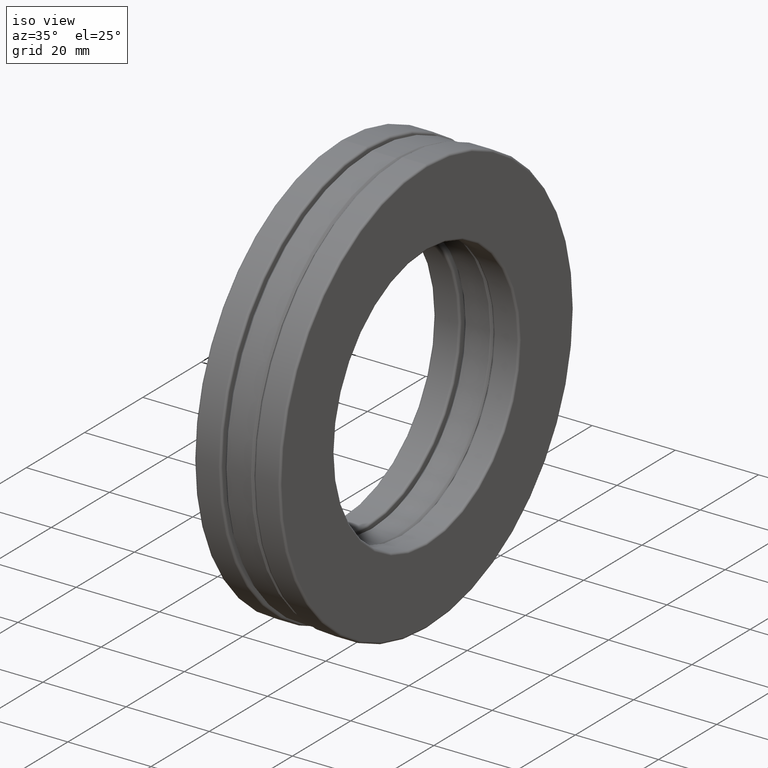
[diagram: clean part render]
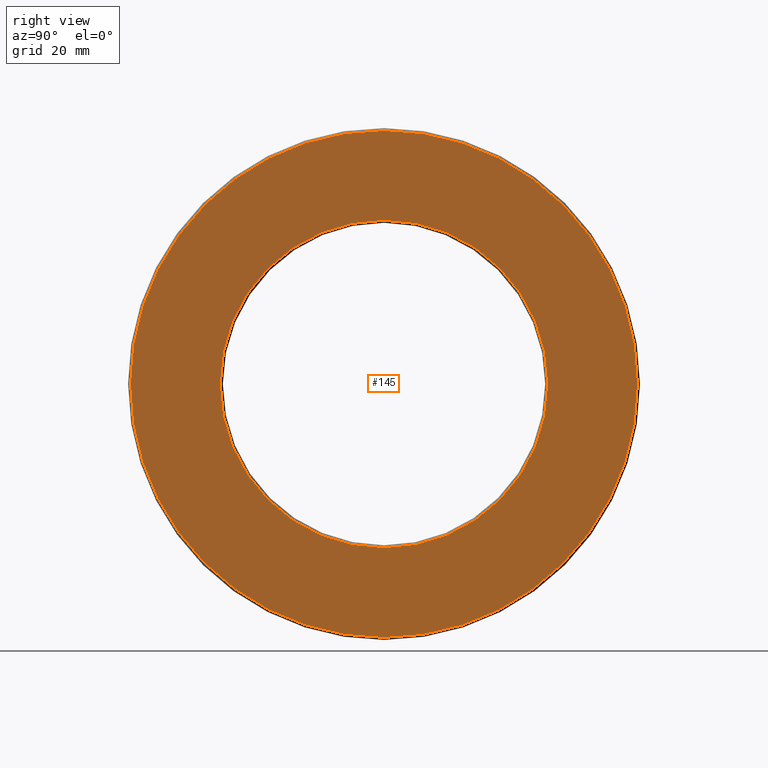
[diagram: tour spotlight — one face highlighted and labeled with its STEP entity id]
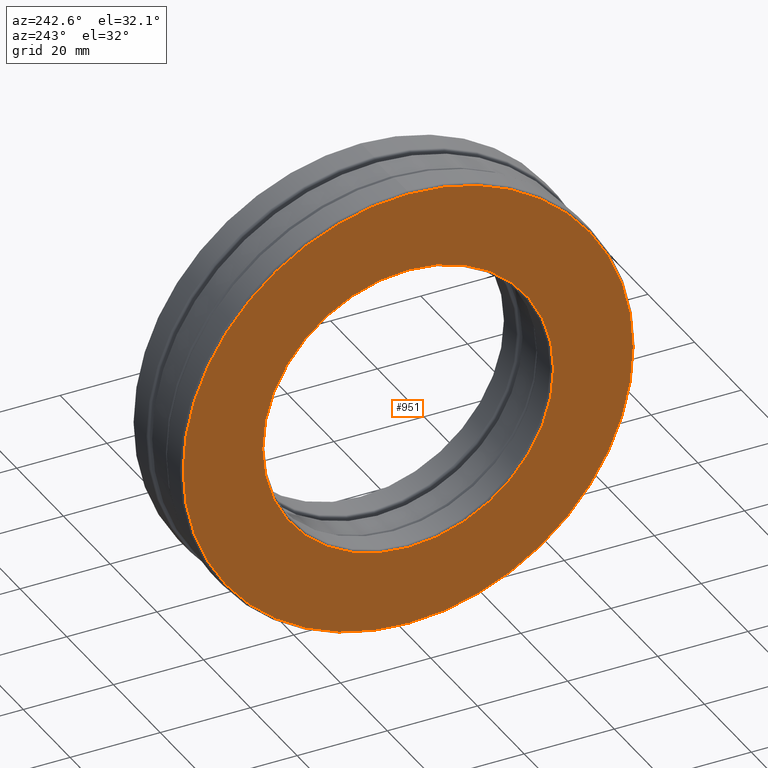
[diagram: tour spotlight — one face highlighted and labeled with its STEP entity id]
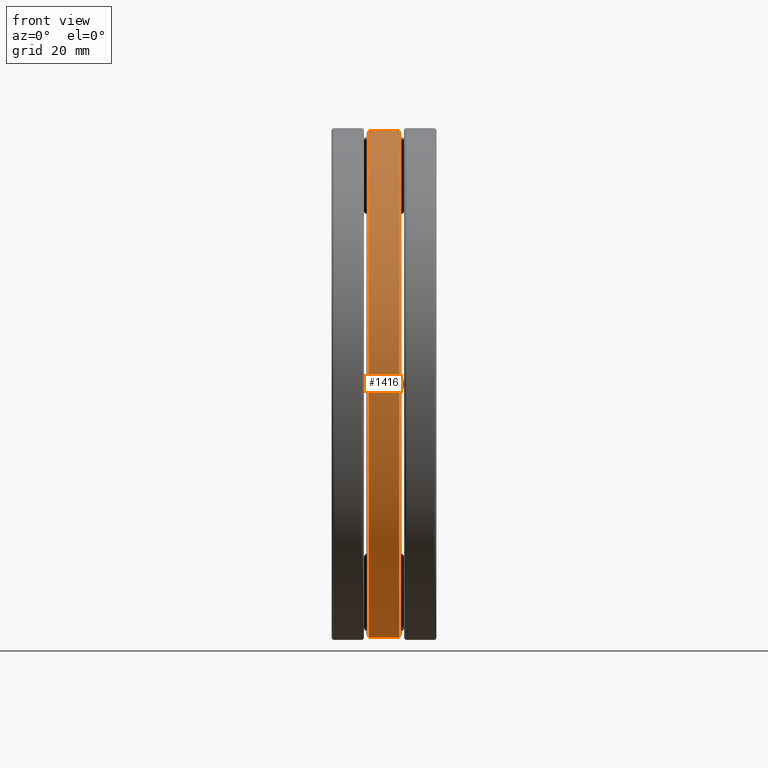
[diagram: tour spotlight — one face highlighted and labeled with its STEP entity id]
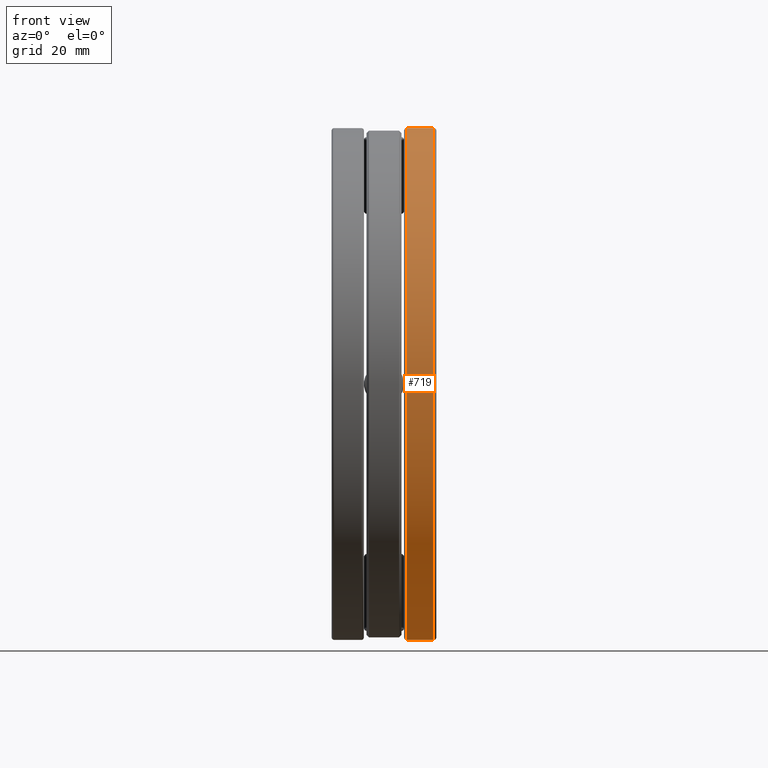
[diagram: tour spotlight — one face highlighted and labeled with its STEP entity id]
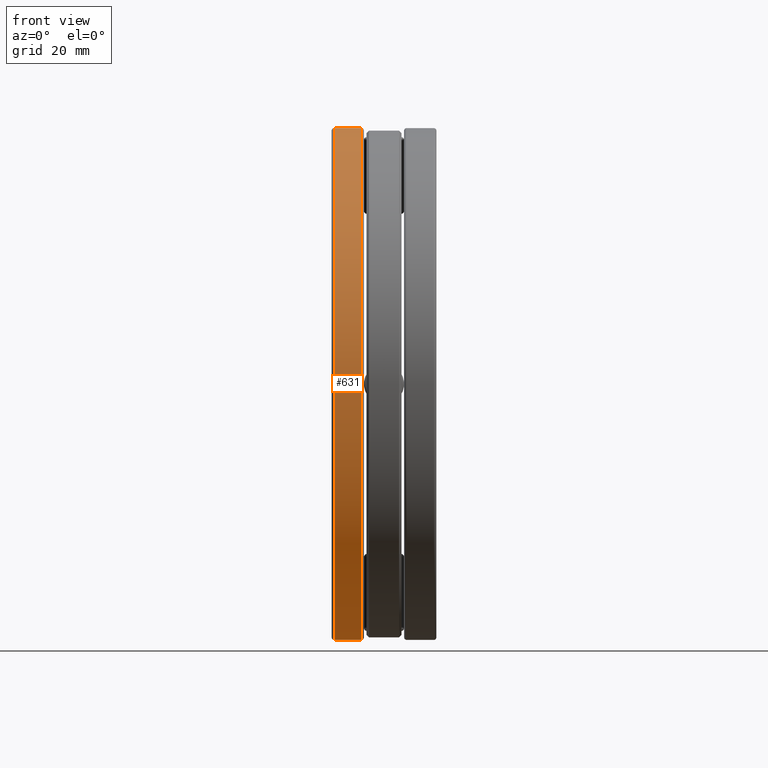
[diagram: tour spotlight — one face highlighted and labeled with its STEP entity id]
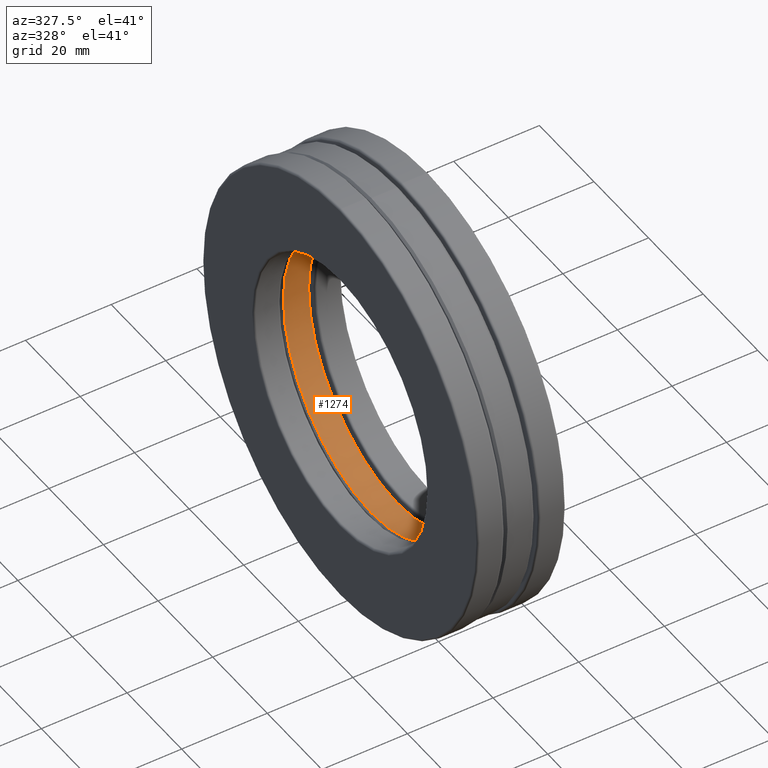
[diagram: tour spotlight — one face highlighted and labeled with its STEP entity id]
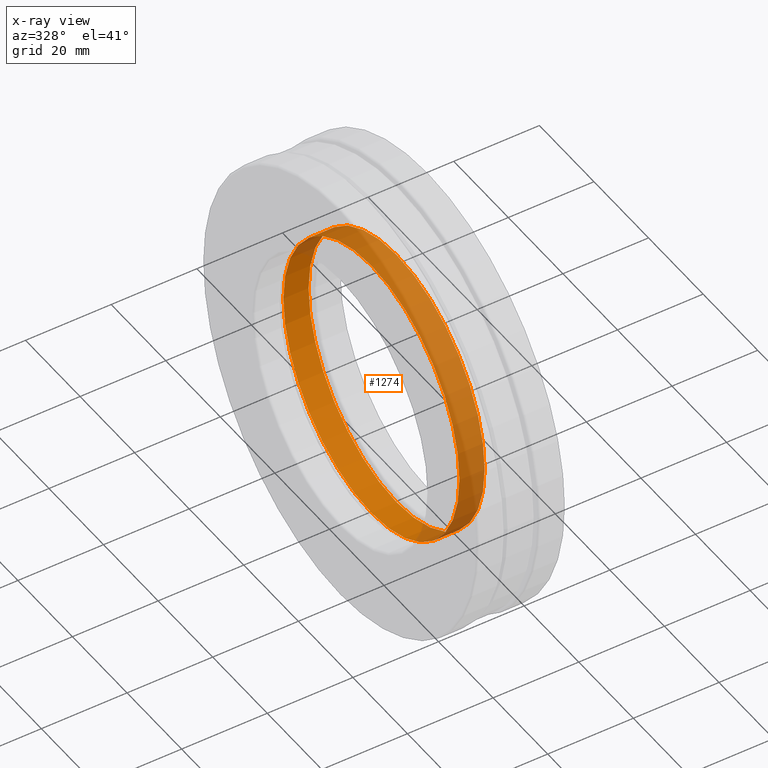
[diagram: x-ray of the same camera — body ghosted, this tour face saturated]
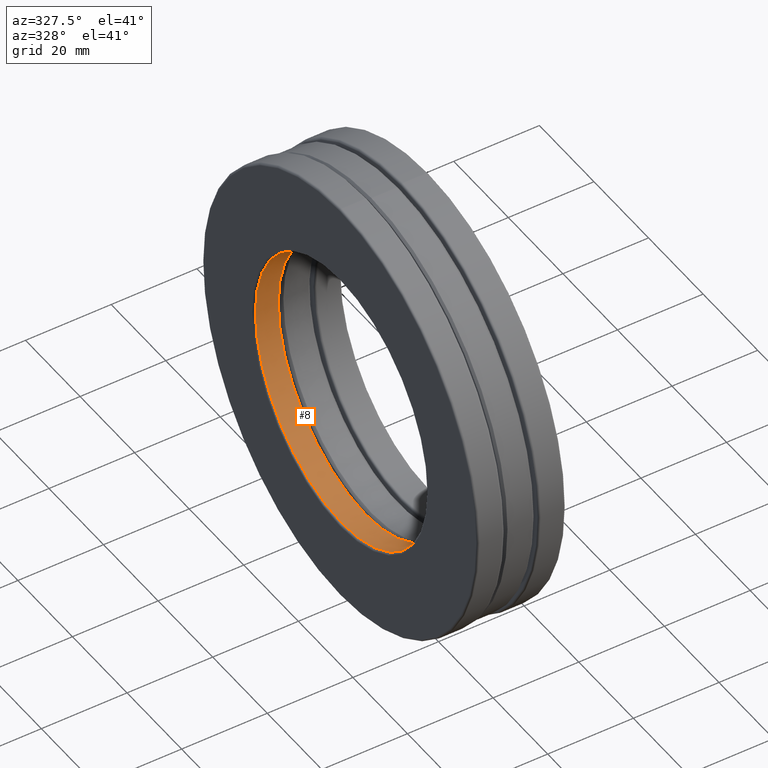
[diagram: tour spotlight — one face highlighted and labeled with its STEP entity id]
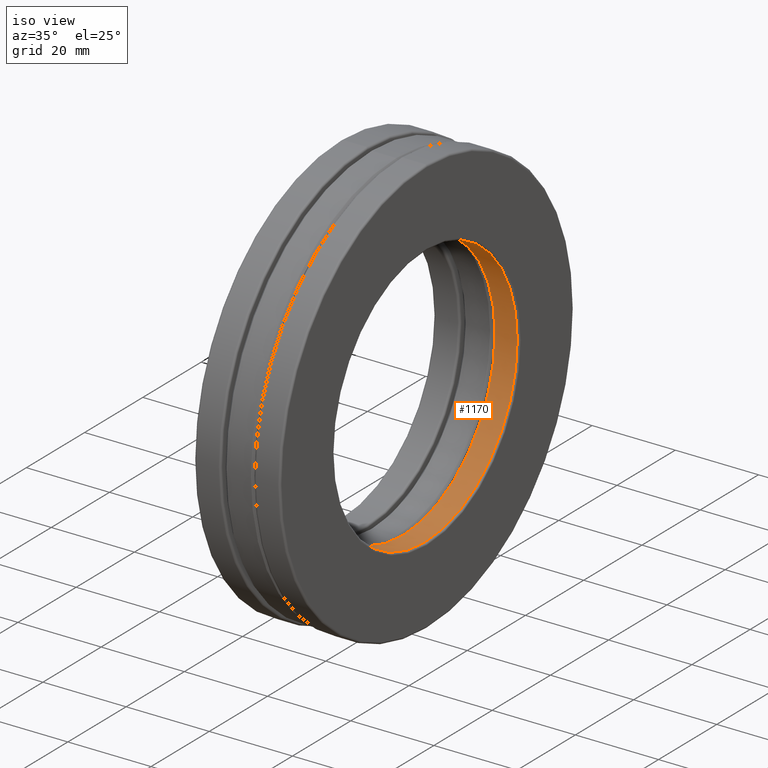
[diagram: tour spotlight — one face highlighted and labeled with its STEP entity id]
A machine part: a face-by-face anatomy tour. The part has 60 B-rep faces; the first image is the clean iso view, then the 8 largest visible faces are spotlighted one at a time (largest first), each with its STEP entity span.

Face 1 — right view, entity #145. In plain terms, the highlighted planar face has unit normal (1, 0, 0).
Definition (entity closure, byte-faithful):
#13 = AXIS2_PLACEMENT_3D ( 'NONE', #1121, #451, #328 ) ;
#27 = AXIS2_PLACEMENT_3D ( 'NONE', #365, #1150, #1141 ) ;
#103 = CARTESIAN_POINT ( 'NONE',  ( 0.4060000000000001400, 0.0000000000000000000, 1.270000000000000000 ) ) ;
#118 = AXIS2_PLACEMENT_3D ( 'NONE', #217, #897, #806 ) ;
#145 = ADVANCED_FACE ( 'NONE', ( #1199, #342 ), #1000, .T. ) ;
#177 = EDGE_CURVE ( 'NONE', #1468, #1468, #985, .T. ) ;
#217 = CARTESIAN_POINT ( 'NONE',  ( 0.4060000000000001400, 0.0000000000000000000, 0.0000000000000000000 ) ) ;
#312 = CARTESIAN_POINT ( 'NONE',  ( 0.4060000000000001400, 0.0000000000000000000, 1.964375000000000600 ) ) ;
#328 = DIRECTION ( 'NONE',  ( 0.0000000000000000000, 0.0000000000000000000, 1.000000000000000000 ) ) ;
#342 = FACE_OUTER_BOUND ( 'NONE', #627, .T. ) ;
#365 = CARTESIAN_POINT ( 'NONE',  ( 0.4060000000000001400, 0.0000000000000000000, 0.0000000000000000000 ) ) ;
#451 = DIRECTION ( 'NONE',  ( -1.000000000000000000, -0.0000000000000000000, -0.0000000000000000000 ) ) ;
#506 = VERTEX_POINT ( 'NONE', #103 ) ;
#597 = ORIENTED_EDGE ( 'NONE', *, *, #177, .F. ) ;
#600 = ORIENTED_EDGE ( 'NONE', *, *, #872, .T. ) ;
#627 = EDGE_LOOP ( 'NONE', ( #597 ) ) ;
#806 = DIRECTION ( 'NONE',  ( 0.0000000000000000000, 0.0000000000000000000, -1.000000000000000000 ) ) ;
#850 = CIRCLE ( 'NONE', #27, 1.270000000000000000 ) ;
#872 = EDGE_CURVE ( 'NONE', #506, #506, #850, .T. ) ;
#897 = DIRECTION ( 'NONE',  ( 1.000000000000000000, 0.0000000000000000000, 0.0000000000000000000 ) ) ;
#985 = CIRCLE ( 'NONE', #13, 1.964375000000000600 ) ;
#992 = EDGE_LOOP ( 'NONE', ( #600 ) ) ;
#1000 = PLANE ( 'NONE',  #118 ) ;
#1121 = CARTESIAN_POINT ( 'NONE',  ( 0.4060000000000001400, 0.0000000000000000000, 0.0000000000000000000 ) ) ;
#1141 = DIRECTION ( 'NONE',  ( 0.0000000000000000000, 0.0000000000000000000, 1.000000000000000000 ) ) ;
#1150 = DIRECTION ( 'NONE',  ( -1.000000000000000000, -0.0000000000000000000, -0.0000000000000000000 ) ) ;
#1199 = FACE_BOUND ( 'NONE', #992, .T. ) ;
#1468 = VERTEX_POINT ( 'NONE', #312 ) ;

Face 2 — auxiliary view, entity #951. In plain terms, the highlighted planar face has unit normal (1, 0, 0).
Definition (entity closure, byte-faithful):
#41 = DIRECTION ( 'NONE',  ( 0.0000000000000000000, 0.0000000000000000000, -1.000000000000000000 ) ) ;
#96 = DIRECTION ( 'NONE',  ( -1.000000000000000000, -0.0000000000000000000, -0.0000000000000000000 ) ) ;
#291 = DIRECTION ( 'NONE',  ( -1.000000000000000000, -0.0000000000000000000, -0.0000000000000000000 ) ) ;
#302 = CARTESIAN_POINT ( 'NONE',  ( -0.4059999999999998600, 0.0000000000000000000, 0.0000000000000000000 ) ) ;
#386 = AXIS2_PLACEMENT_3D ( 'NONE', #499, #1282, #41 ) ;
#421 = CARTESIAN_POINT ( 'NONE',  ( -0.4059999999999998600, 0.0000000000000000000, 1.270000000000000000 ) ) ;
#499 = CARTESIAN_POINT ( 'NONE',  ( -0.4059999999999998600, 0.0000000000000000000, 0.0000000000000000000 ) ) ;
#537 = ORIENTED_EDGE ( 'NONE', *, *, #810, .T. ) ;
#610 = ORIENTED_EDGE ( 'NONE', *, *, #958, .F. ) ;
#658 = EDGE_LOOP ( 'NONE', ( #537 ) ) ;
#789 = CIRCLE ( 'NONE', #801, 1.270000000000000000 ) ;
#801 = AXIS2_PLACEMENT_3D ( 'NONE', #302, #291, #1078 ) ;
#810 = EDGE_CURVE ( 'NONE', #1372, #1372, #1305, .T. ) ;
#888 = FACE_BOUND ( 'NONE', #1236, .T. ) ;
#889 = DIRECTION ( 'NONE',  ( 0.0000000000000000000, 0.0000000000000000000, 1.000000000000000000 ) ) ;
#916 = FACE_OUTER_BOUND ( 'NONE', #658, .T. ) ;
#951 = ADVANCED_FACE ( 'NONE', ( #888, #916 ), #1169, .F. ) ;
#958 = EDGE_CURVE ( 'NONE', #1099, #1099, #789, .T. ) ;
#1078 = DIRECTION ( 'NONE',  ( 0.0000000000000000000, 0.0000000000000000000, 1.000000000000000000 ) ) ;
#1099 = VERTEX_POINT ( 'NONE', #421 ) ;
#1169 = PLANE ( 'NONE',  #386 ) ;
#1236 = EDGE_LOOP ( 'NONE', ( #610 ) ) ;
#1282 = DIRECTION ( 'NONE',  ( 1.000000000000000000, 0.0000000000000000000, 0.0000000000000000000 ) ) ;
#1305 = CIRCLE ( 'NONE', #1456, 1.964375000000000600 ) ;
#1313 = CARTESIAN_POINT ( 'NONE',  ( -0.4059999999999998600, 0.0000000000000000000, 1.964375000000000600 ) ) ;
#1372 = VERTEX_POINT ( 'NONE', #1313 ) ;
#1436 = CARTESIAN_POINT ( 'NONE',  ( -0.4059999999999998600, 0.0000000000000000000, 0.0000000000000000000 ) ) ;
#1456 = AXIS2_PLACEMENT_3D ( 'NONE', #1436, #96, #889 ) ;

Face 3 — front view, entity #1416. In plain terms, the highlighted cylindrical surface (bore or boss wall) has radius 49.8951 mm, axis along (-1, -0, -0).
Definition (entity closure, byte-faithful):
#38 = DIRECTION ( 'NONE',  ( -1.000000000000000000, -0.0000000000000000000, -0.0000000000000000000 ) ) ;
#147 = ORIENTED_EDGE ( 'NONE', *, *, #1380, .F. ) ;
#227 = CIRCLE ( 'NONE', #1183, 1.964375000000000000 ) ;
#270 = AXIS2_PLACEMENT_3D ( 'NONE', #867, #972, #662 ) ;
#412 = DIRECTION ( 'NONE',  ( 0.0000000000000000000, 0.0000000000000000000, 1.000000000000000000 ) ) ;
#535 = EDGE_LOOP ( 'NONE', ( #777 ) ) ;
#562 = FACE_OUTER_BOUND ( 'NONE', #535, .T. ) ;
#623 = DIRECTION ( 'NONE',  ( -1.000000000000000000, -0.0000000000000000000, -0.0000000000000000000 ) ) ;
#662 = DIRECTION ( 'NONE',  ( 0.0000000000000000000, 0.0000000000000000000, 1.000000000000000000 ) ) ;
#711 = CARTESIAN_POINT ( 'NONE',  ( -0.1160000000000000300, 0.0000000000000000000, 1.964375000000000000 ) ) ;
#721 = CARTESIAN_POINT ( 'NONE',  ( -0.1160000000000000300, 0.0000000000000000000, 0.0000000000000000000 ) ) ;
#723 = VERTEX_POINT ( 'NONE', #711 ) ;
#771 = CARTESIAN_POINT ( 'NONE',  ( 0.1160000000000000100, 0.0000000000000000000, 1.964375000000000000 ) ) ;
#777 = ORIENTED_EDGE ( 'NONE', *, *, #1072, .T. ) ;
#860 = CYLINDRICAL_SURFACE ( 'NONE', #270, 1.964375000000000000 ) ;
#867 = CARTESIAN_POINT ( 'NONE',  ( 0.0000000000000000000, 0.0000000000000000000, 0.0000000000000000000 ) ) ;
#972 = DIRECTION ( 'NONE',  ( -1.000000000000000000, -0.0000000000000000000, -0.0000000000000000000 ) ) ;
#1072 = EDGE_CURVE ( 'NONE', #1426, #1426, #1213, .T. ) ;
#1082 = DIRECTION ( 'NONE',  ( 0.0000000000000000000, 0.0000000000000000000, 1.000000000000000000 ) ) ;
#1183 = AXIS2_PLACEMENT_3D ( 'NONE', #721, #38, #412 ) ;
#1186 = CARTESIAN_POINT ( 'NONE',  ( 0.1160000000000000100, 0.0000000000000000000, 0.0000000000000000000 ) ) ;
#1191 = FACE_OUTER_BOUND ( 'NONE', #1429, .T. ) ;
#1213 = CIRCLE ( 'NONE', #1309, 1.964375000000000000 ) ;
#1309 = AXIS2_PLACEMENT_3D ( 'NONE', #1186, #623, #1082 ) ;
#1380 = EDGE_CURVE ( 'NONE', #723, #723, #227, .T. ) ;
#1416 = ADVANCED_FACE ( 'NONE', ( #562, #1191 ), #860, .T. ) ;
#1426 = VERTEX_POINT ( 'NONE', #771 ) ;
#1429 = EDGE_LOOP ( 'NONE', ( #147 ) ) ;

Face 4 — front view, entity #719. In plain terms, the highlighted cylindrical surface (bore or boss wall) has radius 50.4031 mm, axis along (-1, -0, -0).
Definition (entity closure, byte-faithful):
#19 = CARTESIAN_POINT ( 'NONE',  ( 0.1759999999999994900, 0.0000000000000000000, 0.0000000000000000000 ) ) ;
#73 = CARTESIAN_POINT ( 'NONE',  ( 0.0000000000000000000, 0.0000000000000000000, 0.0000000000000000000 ) ) ;
#300 = ORIENTED_EDGE ( 'NONE', *, *, #1302, .F. ) ;
#346 = EDGE_LOOP ( 'NONE', ( #649 ) ) ;
#360 = DIRECTION ( 'NONE',  ( -1.000000000000000000, -0.0000000000000000000, -0.0000000000000000000 ) ) ;
#406 = CIRCLE ( 'NONE', #1178, 1.984375000000000000 ) ;
#432 = CARTESIAN_POINT ( 'NONE',  ( 0.3860000000000006200, 0.0000000000000000000, 0.0000000000000000000 ) ) ;
#440 = FACE_OUTER_BOUND ( 'NONE', #926, .T. ) ;
#446 = EDGE_CURVE ( 'NONE', #927, #927, #406, .T. ) ;
#481 = FACE_OUTER_BOUND ( 'NONE', #346, .T. ) ;
#649 = ORIENTED_EDGE ( 'NONE', *, *, #446, .T. ) ;
#671 = CARTESIAN_POINT ( 'NONE',  ( 0.3860000000000006200, 0.0000000000000000000, 1.984375000000000000 ) ) ;
#719 = ADVANCED_FACE ( 'NONE', ( #440, #481 ), #1432, .T. ) ;
#824 = DIRECTION ( 'NONE',  ( 0.0000000000000000000, 0.0000000000000000000, 1.000000000000000000 ) ) ;
#926 = EDGE_LOOP ( 'NONE', ( #300 ) ) ;
#927 = VERTEX_POINT ( 'NONE', #671 ) ;
#959 = VERTEX_POINT ( 'NONE', #1030 ) ;
#1030 = CARTESIAN_POINT ( 'NONE',  ( 0.1759999999999994900, 0.0000000000000000000, 1.984375000000000000 ) ) ;
#1059 = AXIS2_PLACEMENT_3D ( 'NONE', #73, #1068, #1296 ) ;
#1068 = DIRECTION ( 'NONE',  ( -1.000000000000000000, -0.0000000000000000000, -0.0000000000000000000 ) ) ;
#1074 = AXIS2_PLACEMENT_3D ( 'NONE', #19, #360, #824 ) ;
#1178 = AXIS2_PLACEMENT_3D ( 'NONE', #432, #1240, #1226 ) ;
#1226 = DIRECTION ( 'NONE',  ( 0.0000000000000000000, 0.0000000000000000000, 1.000000000000000000 ) ) ;
#1240 = DIRECTION ( 'NONE',  ( -1.000000000000000000, -0.0000000000000000000, -0.0000000000000000000 ) ) ;
#1296 = DIRECTION ( 'NONE',  ( 0.0000000000000000000, 0.0000000000000000000, 1.000000000000000000 ) ) ;
#1302 = EDGE_CURVE ( 'NONE', #959, #959, #1389, .T. ) ;
#1389 = CIRCLE ( 'NONE', #1074, 1.984375000000000000 ) ;
#1432 = CYLINDRICAL_SURFACE ( 'NONE', #1059, 1.984375000000000000 ) ;

Face 5 — front view, entity #631. In plain terms, the highlighted cylindrical surface (bore or boss wall) has radius 50.4031 mm, axis along (-1, -0, -0).
Definition (entity closure, byte-faithful):
#62 = EDGE_CURVE ( 'NONE', #1174, #1174, #1218, .T. ) ;
#71 = CIRCLE ( 'NONE', #1246, 1.984375000000000000 ) ;
#119 = ORIENTED_EDGE ( 'NONE', *, *, #62, .F. ) ;
#243 = EDGE_CURVE ( 'NONE', #1281, #1281, #71, .T. ) ;
#256 = AXIS2_PLACEMENT_3D ( 'NONE', #617, #1182, #390 ) ;
#290 = AXIS2_PLACEMENT_3D ( 'NONE', #650, #765, #871 ) ;
#390 = DIRECTION ( 'NONE',  ( 0.0000000000000000000, 0.0000000000000000000, 1.000000000000000000 ) ) ;
#436 = CARTESIAN_POINT ( 'NONE',  ( -0.1759999999999994600, 0.0000000000000000000, 1.984375000000000000 ) ) ;
#443 = FACE_OUTER_BOUND ( 'NONE', #1400, .T. ) ;
#512 = CYLINDRICAL_SURFACE ( 'NONE', #256, 1.984375000000000000 ) ;
#552 = CARTESIAN_POINT ( 'NONE',  ( -0.3860000000000003400, 0.0000000000000000000, 1.984375000000000000 ) ) ;
#617 = CARTESIAN_POINT ( 'NONE',  ( 0.0000000000000000000, 0.0000000000000000000, 0.0000000000000000000 ) ) ;
#631 = ADVANCED_FACE ( 'NONE', ( #1435, #443 ), #512, .T. ) ;
#650 = CARTESIAN_POINT ( 'NONE',  ( -0.3860000000000003400, 0.0000000000000000000, 0.0000000000000000000 ) ) ;
#657 = CARTESIAN_POINT ( 'NONE',  ( -0.1759999999999994600, 0.0000000000000000000, 0.0000000000000000000 ) ) ;
#668 = DIRECTION ( 'NONE',  ( -1.000000000000000000, -0.0000000000000000000, -0.0000000000000000000 ) ) ;
#756 = EDGE_LOOP ( 'NONE', ( #119 ) ) ;
#765 = DIRECTION ( 'NONE',  ( -1.000000000000000000, -0.0000000000000000000, -0.0000000000000000000 ) ) ;
#834 = ORIENTED_EDGE ( 'NONE', *, *, #243, .T. ) ;
#871 = DIRECTION ( 'NONE',  ( 0.0000000000000000000, 0.0000000000000000000, 1.000000000000000000 ) ) ;
#1105 = DIRECTION ( 'NONE',  ( 0.0000000000000000000, 0.0000000000000000000, 1.000000000000000000 ) ) ;
#1174 = VERTEX_POINT ( 'NONE', #552 ) ;
#1182 = DIRECTION ( 'NONE',  ( -1.000000000000000000, -0.0000000000000000000, -0.0000000000000000000 ) ) ;
#1218 = CIRCLE ( 'NONE', #290, 1.984375000000000000 ) ;
#1246 = AXIS2_PLACEMENT_3D ( 'NONE', #657, #668, #1105 ) ;
#1281 = VERTEX_POINT ( 'NONE', #436 ) ;
#1400 = EDGE_LOOP ( 'NONE', ( #834 ) ) ;
#1435 = FACE_OUTER_BOUND ( 'NONE', #756, .T. ) ;

Face 6 — auxiliary view, entity #1274. An x-ray twin of the same camera follows (body ghosted, this face saturated) — the face is partly hidden behind the body. In plain terms, the highlighted cylindrical surface (bore or boss wall) has radius 32.258 mm, axis along (-1, -0, -0).
Definition (entity closure, byte-faithful):
#69 = CIRCLE ( 'NONE', #393, 1.270000000000000000 ) ;
#191 = FACE_OUTER_BOUND ( 'NONE', #349, .T. ) ;
#200 = CARTESIAN_POINT ( 'NONE',  ( -0.1159999999999999400, 0.0000000000000000000, 0.0000000000000000000 ) ) ;
#202 = ORIENTED_EDGE ( 'NONE', *, *, #1462, .T. ) ;
#293 = AXIS2_PLACEMENT_3D ( 'NONE', #200, #1328, #994 ) ;
#349 = EDGE_LOOP ( 'NONE', ( #809 ) ) ;
#374 = DIRECTION ( 'NONE',  ( -1.000000000000000000, -0.0000000000000000000, -0.0000000000000000000 ) ) ;
#393 = AXIS2_PLACEMENT_3D ( 'NONE', #1142, #1135, #1370 ) ;
#491 = EDGE_CURVE ( 'NONE', #652, #652, #69, .T. ) ;
#630 = VERTEX_POINT ( 'NONE', #1386 ) ;
#652 = VERTEX_POINT ( 'NONE', #887 ) ;
#727 = CYLINDRICAL_SURFACE ( 'NONE', #969, 1.270000000000000000 ) ;
#809 = ORIENTED_EDGE ( 'NONE', *, *, #491, .F. ) ;
#831 = CIRCLE ( 'NONE', #293, 1.270000000000000000 ) ;
#887 = CARTESIAN_POINT ( 'NONE',  ( 0.1160000000000000800, 0.0000000000000000000, 1.270000000000000000 ) ) ;
#969 = AXIS2_PLACEMENT_3D ( 'NONE', #1373, #374, #1040 ) ;
#994 = DIRECTION ( 'NONE',  ( 0.0000000000000000000, 0.0000000000000000000, 1.000000000000000000 ) ) ;
#1010 = EDGE_LOOP ( 'NONE', ( #202 ) ) ;
#1040 = DIRECTION ( 'NONE',  ( 0.0000000000000000000, 0.0000000000000000000, 1.000000000000000000 ) ) ;
#1087 = FACE_OUTER_BOUND ( 'NONE', #1010, .T. ) ;
#1135 = DIRECTION ( 'NONE',  ( -1.000000000000000000, -0.0000000000000000000, -0.0000000000000000000 ) ) ;
#1142 = CARTESIAN_POINT ( 'NONE',  ( 0.1160000000000000800, 0.0000000000000000000, 0.0000000000000000000 ) ) ;
#1274 = ADVANCED_FACE ( 'NONE', ( #191, #1087 ), #727, .F. ) ;
#1328 = DIRECTION ( 'NONE',  ( -1.000000000000000000, -0.0000000000000000000, -0.0000000000000000000 ) ) ;
#1370 = DIRECTION ( 'NONE',  ( 0.0000000000000000000, 0.0000000000000000000, 1.000000000000000000 ) ) ;
#1373 = CARTESIAN_POINT ( 'NONE',  ( 0.0000000000000000000, 0.0000000000000000000, 0.0000000000000000000 ) ) ;
#1386 = CARTESIAN_POINT ( 'NONE',  ( -0.1159999999999999400, 0.0000000000000000000, 1.270000000000000000 ) ) ;
#1462 = EDGE_CURVE ( 'NONE', #630, #630, #831, .T. ) ;

Face 7 — auxiliary view, entity #8. In plain terms, the highlighted cylindrical surface (bore or boss wall) has radius 31.75 mm, axis along (-1, -0, -0).
Definition (entity closure, byte-faithful):
#8 = ADVANCED_FACE ( 'NONE', ( #463, #1166 ), #700, .F. ) ;
#16 = VERTEX_POINT ( 'NONE', #647 ) ;
#18 = CIRCLE ( 'NONE', #467, 1.250000000000000000 ) ;
#24 = CARTESIAN_POINT ( 'NONE',  ( -0.3860000000000000700, 0.0000000000000000000, 0.0000000000000000000 ) ) ;
#76 = CARTESIAN_POINT ( 'NONE',  ( -0.1759999999999998800, 0.0000000000000000000, 0.0000000000000000000 ) ) ;
#137 = DIRECTION ( 'NONE',  ( 0.0000000000000000000, 0.0000000000000000000, 1.000000000000000000 ) ) ;
#255 = DIRECTION ( 'NONE',  ( -1.000000000000000000, -0.0000000000000000000, -0.0000000000000000000 ) ) ;
#303 = AXIS2_PLACEMENT_3D ( 'NONE', #24, #255, #137 ) ;
#463 = FACE_OUTER_BOUND ( 'NONE', #1337, .T. ) ;
#467 = AXIS2_PLACEMENT_3D ( 'NONE', #76, #1093, #665 ) ;
#568 = EDGE_CURVE ( 'NONE', #725, #725, #1414, .T. ) ;
#647 = CARTESIAN_POINT ( 'NONE',  ( -0.1759999999999998800, 0.0000000000000000000, 1.250000000000000000 ) ) ;
#660 = CARTESIAN_POINT ( 'NONE',  ( 0.0000000000000000000, 0.0000000000000000000, 0.0000000000000000000 ) ) ;
#665 = DIRECTION ( 'NONE',  ( 0.0000000000000000000, 0.0000000000000000000, 1.000000000000000000 ) ) ;
#700 = CYLINDRICAL_SURFACE ( 'NONE', #1431, 1.250000000000000000 ) ;
#725 = VERTEX_POINT ( 'NONE', #1461 ) ;
#728 = ORIENTED_EDGE ( 'NONE', *, *, #828, .F. ) ;
#828 = EDGE_CURVE ( 'NONE', #16, #16, #18, .T. ) ;
#974 = EDGE_LOOP ( 'NONE', ( #728 ) ) ;
#1093 = DIRECTION ( 'NONE',  ( -1.000000000000000000, -0.0000000000000000000, -0.0000000000000000000 ) ) ;
#1166 = FACE_OUTER_BOUND ( 'NONE', #974, .T. ) ;
#1221 = DIRECTION ( 'NONE',  ( 0.0000000000000000000, 0.0000000000000000000, 1.000000000000000000 ) ) ;
#1337 = EDGE_LOOP ( 'NONE', ( #1384 ) ) ;
#1384 = ORIENTED_EDGE ( 'NONE', *, *, #568, .T. ) ;
#1414 = CIRCLE ( 'NONE', #303, 1.250000000000000000 ) ;
#1431 = AXIS2_PLACEMENT_3D ( 'NONE', #660, #1460, #1221 ) ;
#1460 = DIRECTION ( 'NONE',  ( -1.000000000000000000, -0.0000000000000000000, -0.0000000000000000000 ) ) ;
#1461 = CARTESIAN_POINT ( 'NONE',  ( -0.3860000000000000700, 0.0000000000000000000, 1.250000000000000000 ) ) ;

Face 8 — iso view, entity #1170. In plain terms, the highlighted cylindrical surface (bore or boss wall) has radius 31.75 mm, axis along (-1, -0, -0).
Definition (entity closure, byte-faithful):
#58 = DIRECTION ( 'NONE',  ( 0.0000000000000000000, 0.0000000000000000000, 1.000000000000000000 ) ) ;
#78 = EDGE_LOOP ( 'NONE', ( #187 ) ) ;
#187 = ORIENTED_EDGE ( 'NONE', *, *, #1016, .T. ) ;
#402 = FACE_OUTER_BOUND ( 'NONE', #78, .T. ) ;
#408 = AXIS2_PLACEMENT_3D ( 'NONE', #699, #1133, #1235 ) ;
#615 = CYLINDRICAL_SURFACE ( 'NONE', #408, 1.250000000000000000 ) ;
#632 = VERTEX_POINT ( 'NONE', #1228 ) ;
#667 = EDGE_CURVE ( 'NONE', #632, #632, #1306, .T. ) ;
#695 = FACE_OUTER_BOUND ( 'NONE', #818, .T. ) ;
#699 = CARTESIAN_POINT ( 'NONE',  ( 0.0000000000000000000, 0.0000000000000000000, 0.0000000000000000000 ) ) ;
#762 = DIRECTION ( 'NONE',  ( -1.000000000000000000, -0.0000000000000000000, -0.0000000000000000000 ) ) ;
#818 = EDGE_LOOP ( 'NONE', ( #881 ) ) ;
#861 = DIRECTION ( 'NONE',  ( 0.0000000000000000000, 0.0000000000000000000, 1.000000000000000000 ) ) ;
#881 = ORIENTED_EDGE ( 'NONE', *, *, #667, .F. ) ;
#934 = AXIS2_PLACEMENT_3D ( 'NONE', #1086, #762, #58 ) ;
#953 = DIRECTION ( 'NONE',  ( -1.000000000000000000, -0.0000000000000000000, -0.0000000000000000000 ) ) ;
#986 = CARTESIAN_POINT ( 'NONE',  ( 0.1760000000000000500, 0.0000000000000000000, 1.250000000000000000 ) ) ;
#1016 = EDGE_CURVE ( 'NONE', #1229, #1229, #1267, .T. ) ;
#1086 = CARTESIAN_POINT ( 'NONE',  ( 0.1760000000000000500, 0.0000000000000000000, 0.0000000000000000000 ) ) ;
#1133 = DIRECTION ( 'NONE',  ( -1.000000000000000000, -0.0000000000000000000, -0.0000000000000000000 ) ) ;
#1170 = ADVANCED_FACE ( 'NONE', ( #402, #695 ), #615, .F. ) ;
#1228 = CARTESIAN_POINT ( 'NONE',  ( 0.3860000000000000700, 0.0000000000000000000, 1.250000000000000000 ) ) ;
#1229 = VERTEX_POINT ( 'NONE', #986 ) ;
#1235 = DIRECTION ( 'NONE',  ( 0.0000000000000000000, 0.0000000000000000000, 1.000000000000000000 ) ) ;
#1267 = CIRCLE ( 'NONE', #934, 1.250000000000000000 ) ;
#1306 = CIRCLE ( 'NONE', #1342, 1.250000000000000000 ) ;
#1342 = AXIS2_PLACEMENT_3D ( 'NONE', #1425, #953, #861 ) ;
#1425 = CARTESIAN_POINT ( 'NONE',  ( 0.3860000000000000700, 0.0000000000000000000, 0.0000000000000000000 ) ) ;